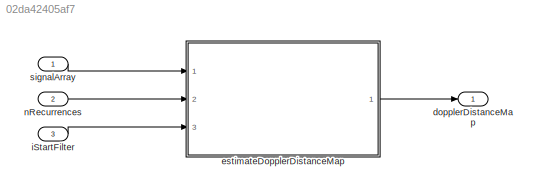
MODEL slx_02da42405af7
KIND model
CONFIG AbsTol = auto
CONFIG EnableMultiTasking = off
CONFIG FixedStep = auto
CONFIG InitFcn = hdlcoderdft_init
CONFIG MaxStep = auto
CONFIG MinStep = auto
CONFIG RelTol = 1e-3
CONFIG SampleTimeConstraint = Unconstrained
CONFIG Solver = FixedStepDiscrete
CONFIG SolverName = FixedStepDiscrete
CONFIG StartTime = 0.0
CONFIG StopTime = 10.0
BLOCK [Outport] dopplerDistanceMap
  IconDisplay = Port number
  OutDataTypeStr = double
  SignalType = complex
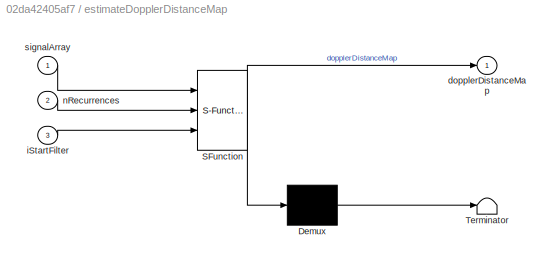
BLOCK [SubSystem] estimateDopplerDistanceMap
  ErrorFcn = Stateflow.Translate.translate
  PermitHierarchicalResolution = ExplicitOnly
  Ports = [3, 1]
  RequestExecContextInheritance = off
  SFBlockType = MATLAB Function
  TreatAsAtomicUnit = on
  Variant = off
BLOCK [Demux] estimateDopplerDistanceMap/ Demux 
  Outputs = 1
  Ports = [1, 1]
BLOCK [S-Function] estimateDopplerDistanceMap/ SFunction 
  EnableBusSupport = on
  FunctionName = sf_sfun
  Parameters = nDistances,nFilters
  PortCounts = [3 2]
  Ports = [3, 2]
  SFcnIsStateOwnerBlock = off
  SFunctionDeploymentMode = off
  Tag = Stateflow S-Function hdlcoderdft 2
BLOCK [Terminator] estimateDopplerDistanceMap/ Terminator 
BLOCK [Outport] estimateDopplerDistanceMap/dopplerDistanceMap
  IconDisplay = Port number
BLOCK [Inport] estimateDopplerDistanceMap/iStartFilter
  IconDisplay = Port number
  Port = 3
BLOCK [Inport] estimateDopplerDistanceMap/nRecurrences
  IconDisplay = Port number
  Port = 2
BLOCK [Inport] estimateDopplerDistanceMap/signalArray
  IconDisplay = Port number
BLOCK [Inport] iStartFilter
  IconDisplay = Port number
  OutDataTypeStr = uint16
  Port = 3
BLOCK [Inport] nRecurrences
  IconDisplay = Port number
  OutDataTypeStr = uint16
  OutMax = 800
  OutMin = 125
  Port = 2
BLOCK [Inport] signalArray
  IconDisplay = Port number
  Interpolate = off
  OutDataTypeStr = double
  PortDimensions = [1 800*51]
  SignalType = complex
  VarSizeSig = Yes
LINE estimateDopplerDistanceMap:1 -> dopplerDistanceMap:1
LINE iStartFilter:1 -> estimateDopplerDistanceMap:3
LINE nRecurrences:1 -> estimateDopplerDistanceMap:2
LINE signalArray:1 -> estimateDopplerDistanceMap:1
CHART estimateDopplerDistanceMap states=1 transitions=1
  STATE_LABEL 'eML_blk_kernel()'
  STATE_LABEL "SCRIPT:\nfunction dopplerDistanceMap = estimateDopplerDistanceMap(signalArray, nRecurrences, iStartFilter, nDistances, nFilters)\n    nSamplesMax = 51 * 800\n    coder.varsize('signalArray', [1 nSamplesMax])\n    dopplerDistanceMap = zeros(nDistances, nFilters)\n"
